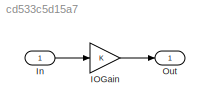
MODEL slx_cd533c5d15a7
KIND model
CONFIG AbsTol = auto
CONFIG EnableMultiTasking = off
CONFIG FixedStep = auto
CONFIG MaxStep = auto
CONFIG MinStep = auto
CONFIG PreLoadFcn = fmi_init;\ninit; \n
CONFIG RelTol = 1e-3
CONFIG SampleTimeConstraint = Unconstrained
CONFIG SolverName = FixedStepAuto
CONFIG StartTime = 0.0
CONFIG StopTime = 10.0
BLOCK [Gain] IOGain
BLOCK [Inport] In
BLOCK [Outport] Out
LINE IOGain:1 -> Out:1
LINE In:1 -> IOGain:1
